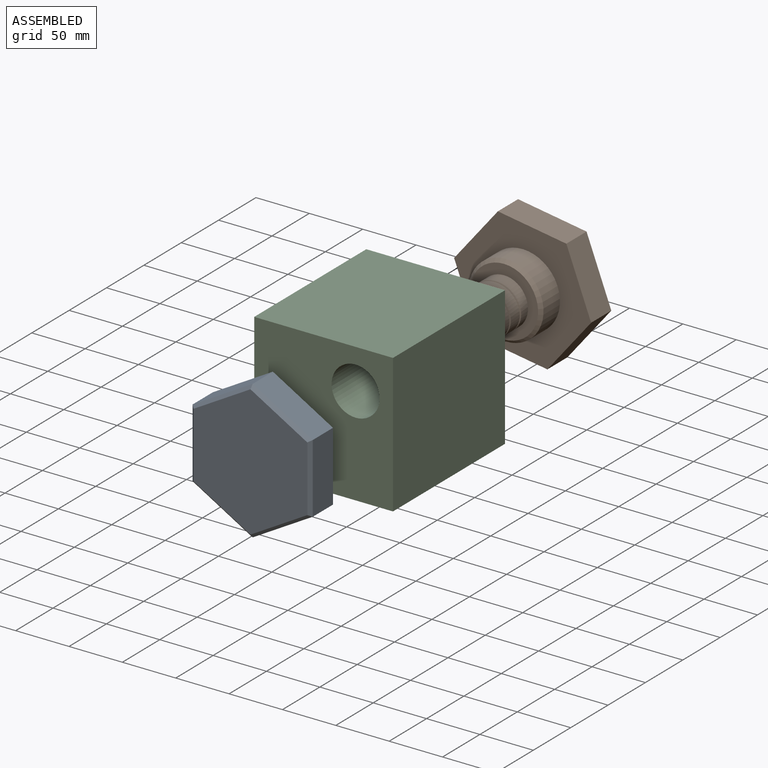
[diagram: assembled view]
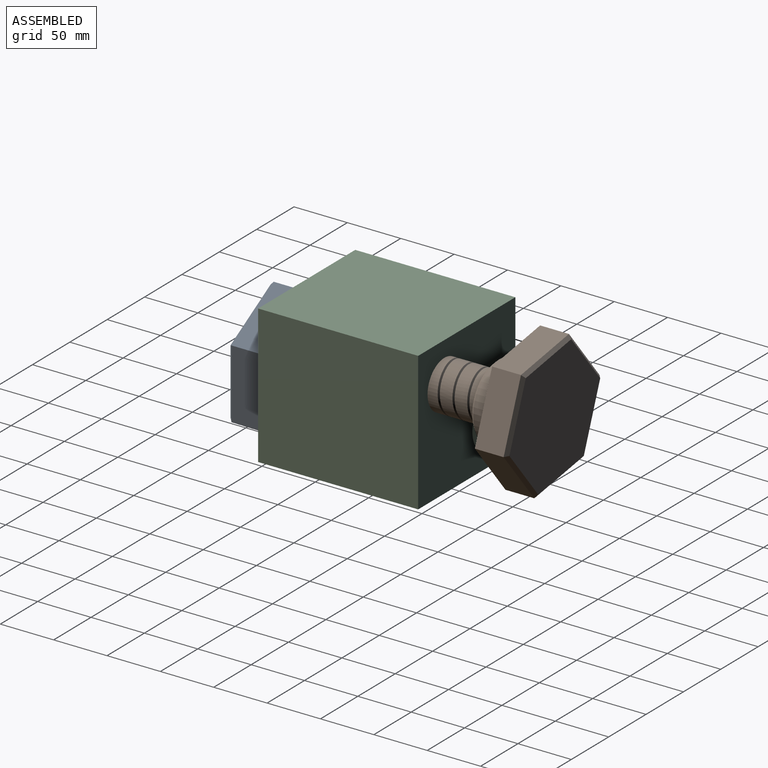
[diagram: assembled view, second angle]
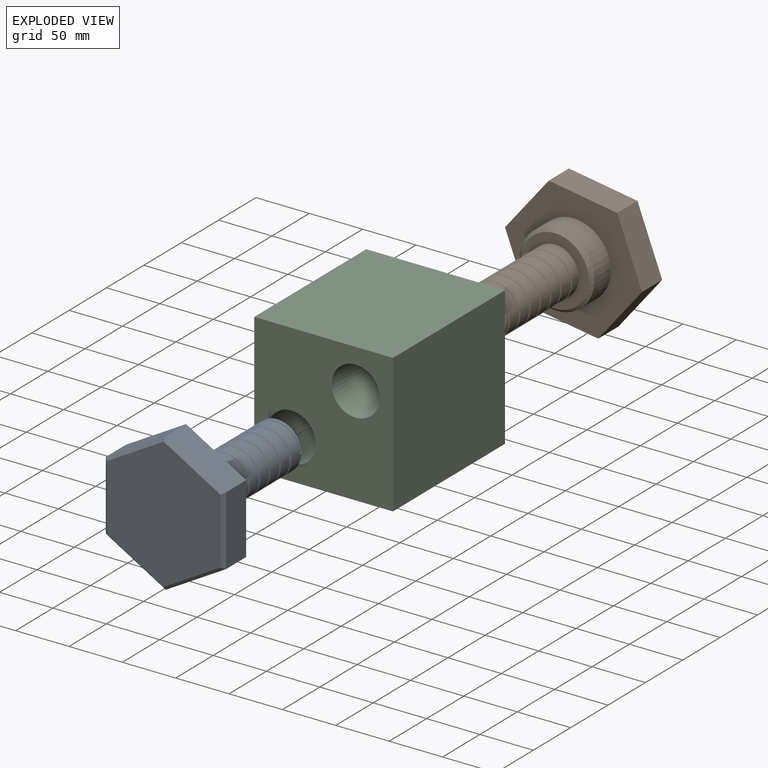
[diagram: exploded view]
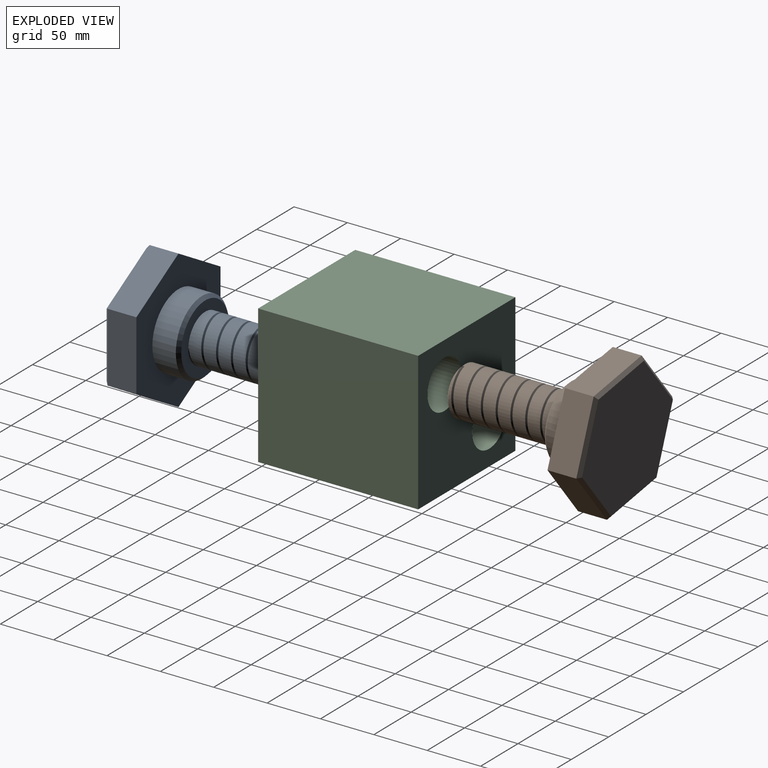
[diagram: exploded view, second angle]
ASSEMBLY  parts=3 mates=2
PART A: 25 faces, bbox 112.6x130x155 mm
  f0: cylinder r=22.5mm len=97mm, axis (0,0,-1), area 12009mm2, adj f1,f11,f20,f21,f22,f24
  f1: cone r=19.5mm half-angle=45deg, axis (0,0,-1), area 559.2mm2, adj f0,f12,f21,f22
  f2: plane 56.29x32.5mm, normal (0.5,0.87,0), area 1755mm2, adj f3,f7,f8,f17
  f3: plane 56.29x32.5mm, normal (-0.5,0.87,0), area 1755mm2, adj f2,f4,f8,f19
  f4: plane 65x27mm, normal (-1,0,0), area 1755mm2, adj f3,f5,f8,f18
  f5: plane 56.29x32.5mm, normal (-0.5,-0.87,0), area 1755mm2, adj f4,f6,f8,f16
  f6: plane 56.29x32.5mm, normal (0.5,-0.87,0), area 1755mm2, adj f5,f7,f8,f14
  f7: plane 65x27mm, normal (1,0,0), area 1755mm2, adj f2,f6,f8,f15
  f8: plane 130x112.58mm, normal (0,0,1), area 7128.4mm2, adj f2,f3,f4,f5,f6,f7,f10
  f9: plane 123.07x106.58mm, normal (0,0,-1), area 9838mm2, adj f14,f15,f16,f17,f18,f19
  f10: cylinder r=35mm len=70mm, axis (0,0,-1), area 4838.1mm2, adj f8,f13
  f11: plane 64x64mm, normal (0,0,1), area 1626.6mm2, adj f0,f13,f23
  f12: plane 39x39mm, normal (0,0,1), area 1194.6mm2, adj f1
  f13: cone r=32mm half-angle=45deg, axis (0,0,-1), area 893mm2, adj f10,f11
  f14: plane 56.29x34.23mm, normal (0.35,-0.61,-0.71), area 268.4mm2, adj f6,f9,f15,f16
  f15: plane 65x3mm, normal (0.71,0,-0.71), area 268.4mm2, adj f7,f9,f14,f17
  f16: plane 56.29x34.23mm, normal (-0.35,-0.61,-0.71), area 268.4mm2, adj f5,f9,f14,f18
  f17: plane 56.29x34.23mm, normal (0.35,0.61,-0.71), area 268.4mm2, adj f2,f9,f15,f19
  f18: plane 65x3mm, normal (-0.71,0,-0.71), area 268.4mm2, adj f4,f9,f16,f19
  f19: plane 56.29x34.23mm, normal (-0.35,0.61,-0.71), area 268.4mm2, adj f3,f9,f17,f18
  f20: plane 2x1.73mm, normal (0,1,0), area 1.7mm2, adj f0,f22,f23,f24
  f21: plane 1.87x1.73mm, normal (0,-1,0), area 1.7mm2, adj f0,f1,f22,f24
  f22: bspline ~98x45mm, area 1909.8mm2, adj f0,f1,f20,f21,f24
  f23: cylinder r=22.5mm len=15.17mm, axis (0,0,1), area 13.7mm2, adj f11,f20,f24
  f24: bspline ~98x45mm, area 1912.7mm2, adj f0,f20,f21,f22,f23
PART B: same geometry as A
PART C: 8 faces, bbox 130x150x130 mm
  f0: plane 150x130mm, normal (1,0,0), area 19500mm2, adj f1,f4,f6,f7
  f1: plane 150x130mm, normal (0,0,1), area 19500mm2, adj f0,f2,f6,f7
  f2: plane 150x130mm, normal (-1,0,0), area 19500mm2, adj f1,f4,f6,f7
  f3: cylinder r=22.5mm len=150mm, axis (0,1,0), area 21205.8mm2, adj f6,f7
  f4: plane 150x130mm, normal (0,0,-1), area 19500mm2, adj f0,f2,f6,f7
  f5: cylinder r=22.5mm len=150mm, axis (0,1,0), area 21205.8mm2, adj f6,f7
  f6: plane 130x130mm, normal (0,-1,0), area 13719.1mm2, adj f0,f1,f2,f3,f4,f5
  f7: plane 130x130mm, normal (0,1,0), area 13719.1mm2, adj f0,f1,f2,f3,f4,f5
PLACE A rot(axis=(-1,0,0),90deg) t=(-40.69,-170.48,-41.46)mm
PLACE B rot(axis=(0.64,-0.54,0.54),114.9deg) t=(19.31,138.02,13.54)mm
PLACE C t=(-10.69,34.52,-13.96)mm fixed
MATE revolute C.f5 <-> B.f0  axis (0,1,0) through (19.31,34.52,13.54)mm
MATE fastened A.f0 <-> C.f3  axis (0,-1,0) through (-40.69,-115.48,-41.46)mm
